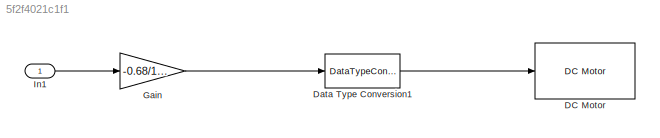
MODEL slx_5f2f4021c1f1
KIND model
CONFIG AbsTol = auto
CONFIG EnableMultiTasking = off
CONFIG FixedStep = auto
CONFIG MaxStep = auto
CONFIG MinStep = auto
CONFIG RelTol = 1e-3
CONFIG SampleTimeConstraint = Unconstrained
CONFIG Solver = VariableStepAuto
CONFIG SolverName = VariableStepAuto
CONFIG StartTime = 0.0
CONFIG StopTime = inf
BLOCK [Reference] DC Motor  REF=frdmtfcshieldlib/DC Motor
  Ports = [1]
  SourceBlock = frdmtfcshieldlib/DC Motor
  SourceProductBaseCode = EC_FREEDOM_BOARD
  SourceProductName = Simulink Coder Support Package for NXP FRDM-KL25Z Board
  SourceType = DC Motor
BLOCK [DataTypeConversion] Data Type Conversion1
  OutDataTypeStr = double
  RndMeth = Floor
  SaturateOnIntegerOverflow = off
BLOCK [Gain] Gain
  Gain = -0.68/100
  OutDataTypeStr = Inherit: Inherit via internal rule
  ParamDataTypeStr = Inherit: Inherit via internal rule
  SaturateOnIntegerOverflow = off
BLOCK [Inport] In1
  IconDisplay = Port number
LINE Data Type Conversion1:1 -> DC Motor:1
LINE Gain:1 -> Data Type Conversion1:1
LINE In1:1 -> Gain:1
